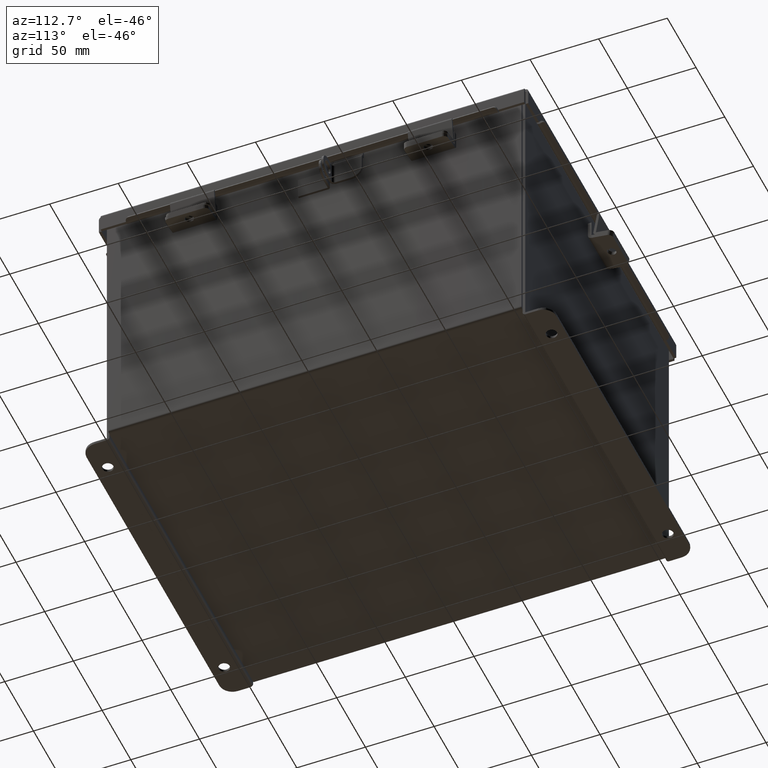
[diagram: clean part render]
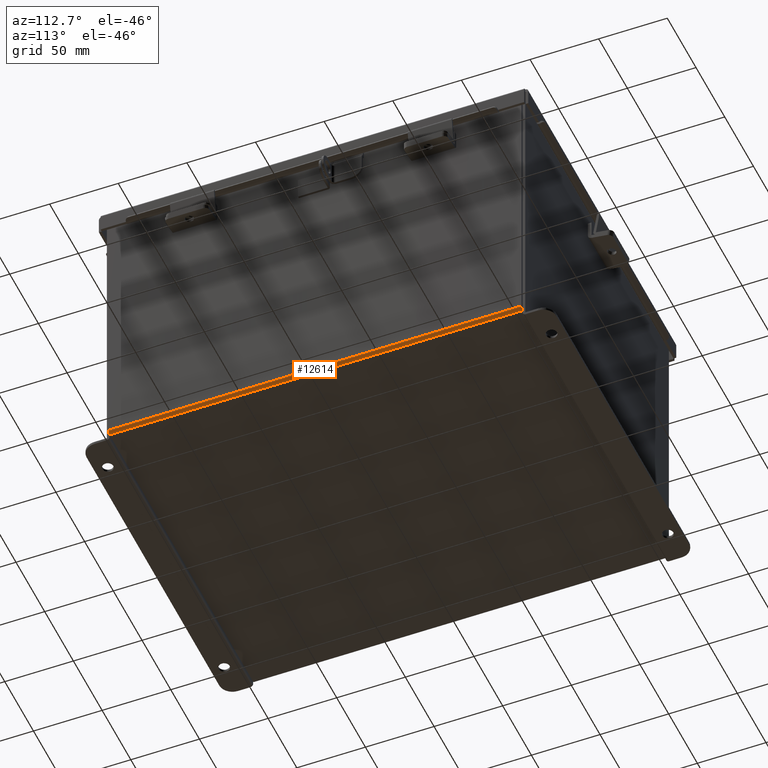
[diagram: same view with one face highlighted and labeled with its STEP entity id]
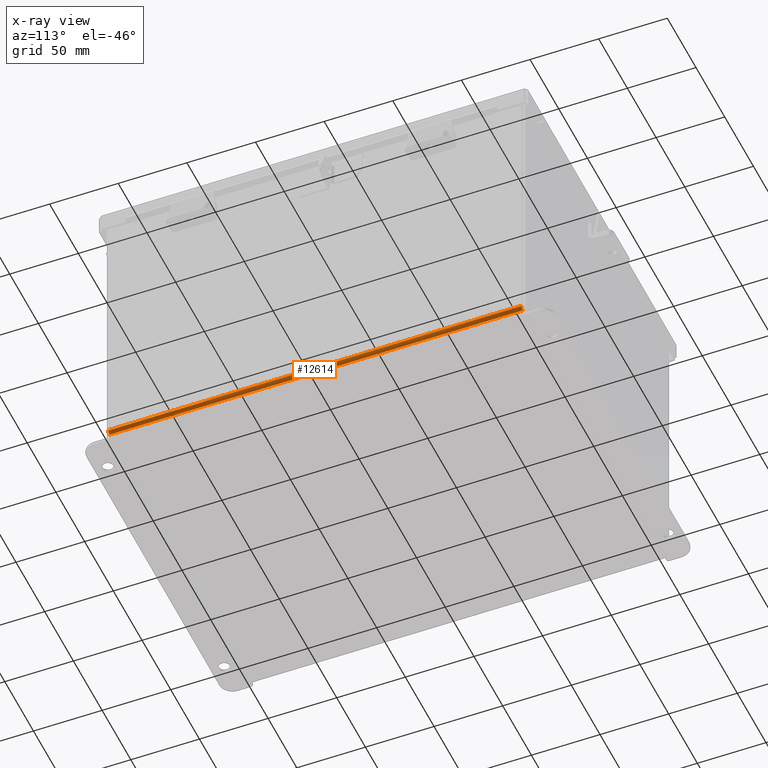
[diagram: x-ray of the same camera — body ghosted, the highlighted face saturated]
A machine part, auxiliary view. The second image highlights one B-rep face of the part: STEP entity #12614.
The next image is the same camera in x-ray: the body ghosted, the highlighted face saturated — about 0% of this face is hidden behind the body in this view.
In plain terms, the highlighted cylindrical surface (edge-blend (fillet) strip) has radius 2.2276 mm, axis along (0, 1, 0).
Its self-contained STEP definition (entity closure, byte-faithful):
#97 = VERTEX_POINT ( 'NONE', #5151 ) ;
#216 = ORIENTED_EDGE ( 'NONE', *, *, #5385, .F. ) ;
#2102 = VECTOR ( 'NONE', #13172, 39.37007874015748100 ) ;
#3356 = FACE_OUTER_BOUND ( 'NONE', #6101, .T. ) ;
#4217 = CYLINDRICAL_SURFACE ( 'NONE', #7894, 0.08770000000000026400 ) ;
#4246 = CARTESIAN_POINT ( 'NONE',  ( 5.000000000000000000, 5.925299999999998200, 0.01299999999999984300 ) ) ;
#4397 = DIRECTION ( 'NONE',  ( -0.0000000000000000000, -1.000000000000000000, -0.0000000000000000000 ) ) ;
#5151 = CARTESIAN_POINT ( 'NONE',  ( 4.912300000000000100, -5.925300000000000000, -0.07470000000000000300 ) ) ;
#5385 = EDGE_CURVE ( 'NONE', #12583, #97, #8075, .T. ) ;
#5776 = CIRCLE ( 'NONE', #10222, 0.08770000000000009700 ) ;
#6101 = EDGE_LOOP ( 'NONE', ( #216, #12798, #14491, #11310 ) ) ;
#6863 = DIRECTION ( 'NONE',  ( 0.0000000000000000000, 1.000000000000000000, 0.0000000000000000000 ) ) ;
#7631 = VECTOR ( 'NONE', #12521, 39.37007874015748100 ) ;
#7894 = AXIS2_PLACEMENT_3D ( 'NONE', #16129, #7974, #17522 ) ;
#7974 = DIRECTION ( 'NONE',  ( 0.0000000000000000000, 1.000000000000000000, 0.0000000000000000000 ) ) ;
#8007 = AXIS2_PLACEMENT_3D ( 'NONE', #12538, #4397, #13934 ) ;
#8075 = LINE ( 'NONE', #8479, #7631 ) ;
#8479 = CARTESIAN_POINT ( 'NONE',  ( 4.912300000000000100, 5.925300000000000000, -0.07469999999999994700 ) ) ;
#10222 = AXIS2_PLACEMENT_3D ( 'NONE', #15017, #6863, #16391 ) ;
#10965 = EDGE_CURVE ( 'NONE', #13732, #12379, #16622, .T. ) ;
#11310 = ORIENTED_EDGE ( 'NONE', *, *, #12833, .F. ) ;
#11542 = CARTESIAN_POINT ( 'NONE',  ( 5.000000000000000000, -5.925300000000000000, 0.01299999999999984300 ) ) ;
#12013 = CARTESIAN_POINT ( 'NONE',  ( 4.912300000000000100, 5.925299999999997300, -0.07469999999999994700 ) ) ;
#12379 = VERTEX_POINT ( 'NONE', #11542 ) ;
#12521 = DIRECTION ( 'NONE',  ( -0.0000000000000000000, -1.000000000000000000, -0.0000000000000000000 ) ) ;
#12538 = CARTESIAN_POINT ( 'NONE',  ( 4.912300000000000100, -5.925300000000000000, 0.01300000000000015000 ) ) ;
#12583 = VERTEX_POINT ( 'NONE', #12013 ) ;
#12614 = ADVANCED_FACE ( 'NONE', ( #3356 ), #4217, .T. ) ;
#12798 = ORIENTED_EDGE ( 'NONE', *, *, #17400, .F. ) ;
#12833 = EDGE_CURVE ( 'NONE', #97, #12379, #15329, .T. ) ;
#13172 = DIRECTION ( 'NONE',  ( -0.0000000000000000000, -1.000000000000000000, -0.0000000000000000000 ) ) ;
#13732 = VERTEX_POINT ( 'NONE', #4246 ) ;
#13934 = DIRECTION ( 'NONE',  ( 0.0000000000000000000, 0.0000000000000000000, 1.000000000000000000 ) ) ;
#14491 = ORIENTED_EDGE ( 'NONE', *, *, #10965, .T. ) ;
#15017 = CARTESIAN_POINT ( 'NONE',  ( 4.912300000000000100, 5.925299999999997300, 0.01300000000000015000 ) ) ;
#15329 = CIRCLE ( 'NONE', #8007, 0.08770000000000009700 ) ;
#16129 = CARTESIAN_POINT ( 'NONE',  ( 4.912300000000000100, 5.925300000000000000, 0.01300000000000015000 ) ) ;
#16391 = DIRECTION ( 'NONE',  ( 0.0000000000000000000, 0.0000000000000000000, 1.000000000000000000 ) ) ;
#16622 = LINE ( 'NONE', #17246, #2102 ) ;
#17246 = CARTESIAN_POINT ( 'NONE',  ( 5.000000000000000000, -5.925300000000000000, 0.01299999999999984300 ) ) ;
#17400 = EDGE_CURVE ( 'NONE', #13732, #12583, #5776, .T. ) ;
#17522 = DIRECTION ( 'NONE',  ( 1.000000000000000000, 0.0000000000000000000, -3.480030137311043200E-015 ) ) ;